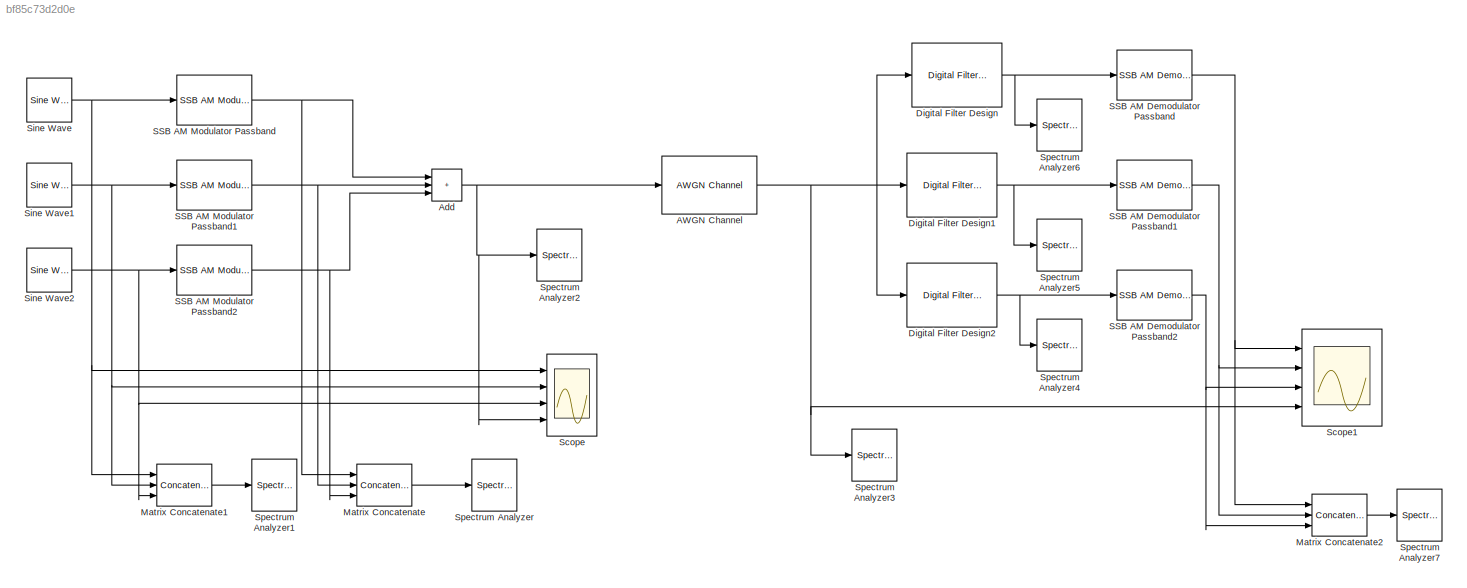
MODEL slx_bf85c73d2d0e
KIND model
CONFIG AbsTol = auto
CONFIG EnableMultiTasking = off
CONFIG FixedStep = auto
CONFIG MaxStep = auto
CONFIG MinStep = auto
CONFIG RelTol = 1e-3
CONFIG SampleTimeConstraint = Unconstrained
CONFIG Solver = VariableStepAuto
CONFIG SolverName = VariableStepAuto
CONFIG StartTime = 0.0
CONFIG StopTime = 2
BLOCK [Reference] AWGN Channel  REF=commchan3/AWGN
Channel
  Ports = [1, 1]
  SourceBlock = commchan3/AWGN\nChannel
  SourceProductBaseCode = CM
  SourceType = AWGN Channel
  UserDataPersistent = on
BLOCK [Sum] Add
  IconShape = rectangular
  Inputs = +++
  Ports = [3, 1]
BLOCK [Reference] Digital Filter Design  REF=dsparch4/Digital
Filter Design
  Ports = [1, 1]
  SourceBlock = dsparch4/Digital\nFilter Design
  SourceProductBaseCode = DS
  SourceType = Digital Filter Design
  UserDataPersistent = on
BLOCK [Reference] Digital Filter Design1  REF=dsparch4/Digital
Filter Design
  Ports = [1, 1]
  SourceBlock = dsparch4/Digital\nFilter Design
  SourceProductBaseCode = DS
  SourceType = Digital Filter Design
  UserDataPersistent = on
BLOCK [Reference] Digital Filter Design2  REF=dsparch4/Digital
Filter Design
  Ports = [1, 1]
  SourceBlock = dsparch4/Digital\nFilter Design
  SourceProductBaseCode = DS
  SourceType = Digital Filter Design
  UserDataPersistent = on
BLOCK [Concatenate] Matrix Concatenate
  ConcatenateDimension = 2
  NumInputs = 3
  Ports = [3, 1]
BLOCK [Concatenate] Matrix Concatenate1
  ConcatenateDimension = 2
  NumInputs = 3
  Ports = [3, 1]
BLOCK [Concatenate] Matrix Concatenate2
  ConcatenateDimension = 2
  NumInputs = 3
  Ports = [3, 1]
BLOCK [Reference] SSB AM Demodulator Passband  REF=commanapbnd3/SSB AM
Demodulator
Passband
  Ports = [1, 1]
  SourceBlock = commanapbnd3/SSB AM\nDemodulator\nPassband
  SourceProductBaseCode = CM
  SourceType = SSB AM Demodulator Passband
BLOCK [Reference] SSB AM Demodulator Passband1  REF=commanapbnd3/SSB AM
Demodulator
Passband
  Ports = [1, 1]
  SourceBlock = commanapbnd3/SSB AM\nDemodulator\nPassband
  SourceProductBaseCode = CM
  SourceType = SSB AM Demodulator Passband
BLOCK [Reference] SSB AM Demodulator Passband2  REF=commanapbnd3/SSB AM
Demodulator
Passband
  Ports = [1, 1]
  SourceBlock = commanapbnd3/SSB AM\nDemodulator\nPassband
  SourceProductBaseCode = CM
  SourceType = SSB AM Demodulator Passband
BLOCK [Reference] SSB AM Modulator Passband  REF=commanapbnd3/SSB AM
Modulator
Passband
  Ports = [1, 1]
  SourceBlock = commanapbnd3/SSB AM\nModulator\nPassband
  SourceProductBaseCode = CM
  SourceType = SSB AM Modulator Passband
BLOCK [Reference] SSB AM Modulator Passband1  REF=commanapbnd3/SSB AM
Modulator
Passband
  Ports = [1, 1]
  SourceBlock = commanapbnd3/SSB AM\nModulator\nPassband
  SourceProductBaseCode = CM
  SourceType = SSB AM Modulator Passband
BLOCK [Reference] SSB AM Modulator Passband2  REF=commanapbnd3/SSB AM
Modulator
Passband
  Ports = [1, 1]
  SourceBlock = commanapbnd3/SSB AM\nModulator\nPassband
  SourceProductBaseCode = CM
  SourceType = SSB AM Modulator Passband
BLOCK [Scope] Scope
  Floating = off
  NumInputPorts = 4
  Ports = [4]
  ScopeSpecificationString = Simulink.scopes.TimeScopeBlockCfg('CurrentConfiguration', extmgr.ConfigurationSet(extmgr.Configuration('Core','General UI',true),extmgr.Configuration('Core','Source UI',true),extmgr.Configuration('Sources','WiredSimulink',true),extmgr.Configuration('Visuals','Time Domain',true,'SerializedDisplays',{struct('MinYLimReal','-6.25','MaxYLimReal','6.25','YLabelReal','','MinYLimMag','0.00000','MaxYLimMag...<+3405ch>
BLOCK [Scope] Scope1
  Floating = off
  NumInputPorts = 4
  Ports = [4]
  ScopeSpecificationString = Simulink.scopes.TimeScopeBlockCfg('CurrentConfiguration', extmgr.ConfigurationSet(extmgr.Configuration('Core','General UI',true),extmgr.Configuration('Core','Source UI',true),extmgr.Configuration('Sources','WiredSimulink',true,'DataLoggingVariableName','ScopeData1'),extmgr.Configuration('Visuals','Time Domain',true,'SerializedDisplays',{struct('MinYLimReal','-4.09608','MaxYLimReal','4.03274','YLab...<+3540ch>
BLOCK [Reference] Sine Wave  REF=dspsrcs4/Sine Wave
  Ports = [0, 1]
  SourceBlock = dspsrcs4/Sine Wave
  SourceProductBaseCode = DS
  SourceType = Sine Wave
BLOCK [Reference] Sine Wave1  REF=dspsrcs4/Sine Wave
  Ports = [0, 1]
  SourceBlock = dspsrcs4/Sine Wave
  SourceProductBaseCode = DS
  SourceType = Sine Wave
BLOCK [Reference] Sine Wave2  REF=dspsrcs4/Sine Wave
  Ports = [0, 1]
  SourceBlock = dspsrcs4/Sine Wave
  SourceProductBaseCode = DS
  SourceType = Sine Wave
BLOCK [SpectrumAnalyzer] Spectrum Analyzer
  Ports = [1]
  ScopeSpecificationString = spbscopes.SpectrumAnalyzerBlockCfg('CurrentConfiguration', extmgr.ConfigurationSet(extmgr.Configuration('Core','General UI',true),extmgr.Configuration('Core','Source UI',true),extmgr.Configuration('Sources','WiredSimulink',true),extmgr.Configuration('Visuals','Spectrum',true,'AxesProperties',struct('Color',{[0 0 0],[0 0 0]},'XColor',{[0.686274509803922 0.686274509803922 0.686274509803922],[0.68627...<+1947ch>
BLOCK [SpectrumAnalyzer] Spectrum Analyzer1
  Ports = [1]
  ScopeSpecificationString = spbscopes.SpectrumAnalyzerBlockCfg('CurrentConfiguration', extmgr.ConfigurationSet(extmgr.Configuration('Core','General UI',true),extmgr.Configuration('Core','Source UI',true),extmgr.Configuration('Sources','WiredSimulink',true),extmgr.Configuration('Sources','SimulinkEvent',false),extmgr.Configuration('Sources','Simulink',false),extmgr.Configuration('Sources','SPTool',false),extmgr.Configuration(...<+3631ch>
BLOCK [SpectrumAnalyzer] Spectrum Analyzer2
  Ports = [1]
  ScopeSpecificationString = spbscopes.SpectrumAnalyzerBlockCfg('CurrentConfiguration', extmgr.ConfigurationSet(extmgr.Configuration('Core','General UI',true),extmgr.Configuration('Core','Source UI',true),extmgr.Configuration('Sources','WiredSimulink',true),extmgr.Configuration('Visuals','Spectrum',true,'AxesProperties',struct('Color',{[0 0 0],[0 0 0]},'XColor',{[0.686274509803922 0.686274509803922 0.686274509803922],[0.68627...<+2515ch>
BLOCK [SpectrumAnalyzer] Spectrum Analyzer3
  Ports = [1]
  ScopeSpecificationString = spbscopes.SpectrumAnalyzerBlockCfg('CurrentConfiguration', extmgr.ConfigurationSet(extmgr.Configuration('Core','General UI',true),extmgr.Configuration('Core','Source UI',true),extmgr.Configuration('Sources','WiredSimulink',true),extmgr.Configuration('Visuals','Spectrum',true,'AxesProperties',struct('Color',{[0 0 0],[0 0 0]},'XColor',{[0.686274509803922 0.686274509803922 0.686274509803922],[0.68627...<+1797ch>
BLOCK [SpectrumAnalyzer] Spectrum Analyzer4
  Ports = [1]
  ScopeSpecificationString = spbscopes.SpectrumAnalyzerBlockCfg('CurrentConfiguration', extmgr.ConfigurationSet(extmgr.Configuration('Core','General UI',true),extmgr.Configuration('Core','Source UI',true),extmgr.Configuration('Sources','WiredSimulink',true),extmgr.Configuration('Visuals','Spectrum',true,'AxesProperties',struct('Color',{[0 0 0],[0 0 0]},'XColor',{[0.686274509803922 0.686274509803922 0.686274509803922],[0.68627...<+1797ch>
BLOCK [SpectrumAnalyzer] Spectrum Analyzer5
  Ports = [1]
  ScopeSpecificationString = spbscopes.SpectrumAnalyzerBlockCfg('CurrentConfiguration', extmgr.ConfigurationSet(extmgr.Configuration('Core','General UI',true),extmgr.Configuration('Core','Source UI',true),extmgr.Configuration('Sources','WiredSimulink',true),extmgr.Configuration('Visuals','Spectrum',true,'AxesProperties',struct('Color',{[0 0 0],[0 0 0]},'XColor',{[0.686274509803922 0.686274509803922 0.686274509803922],[0.68627...<+1799ch>
BLOCK [SpectrumAnalyzer] Spectrum Analyzer6
  Ports = [1]
  ScopeSpecificationString = spbscopes.SpectrumAnalyzerBlockCfg('CurrentConfiguration', extmgr.ConfigurationSet(extmgr.Configuration('Core','General UI',true),extmgr.Configuration('Core','Source UI',true),extmgr.Configuration('Sources','WiredSimulink',true),extmgr.Configuration('Visuals','Spectrum',true,'AxesProperties',struct('Color',{[0 0 0],[0 0 0]},'XColor',{[0.686274509803922 0.686274509803922 0.686274509803922],[0.68627...<+1795ch>
BLOCK [SpectrumAnalyzer] Spectrum Analyzer7
  Ports = [1]
  ScopeSpecificationString = spbscopes.SpectrumAnalyzerBlockCfg('CurrentConfiguration', extmgr.ConfigurationSet(extmgr.Configuration('Core','General UI',true),extmgr.Configuration('Core','Source UI',true),extmgr.Configuration('Sources','WiredSimulink',true),extmgr.Configuration('Visuals','Spectrum',true,'AxesProperties',struct('Color',{[0 0 0],[0 0 0]},'XColor',{[0.686274509803922 0.686274509803922 0.686274509803922],[0.68627...<+1934ch>
NET AWGN Channel:1 -> Digital Filter Design1:1, Digital Filter Design2:1, Digital Filter Design:1, Scope1:4, Spectrum Analyzer3:1
NET Add:1 -> AWGN Channel:1, Scope:4, Spectrum Analyzer2:1
NET Digital Filter Design1:1 -> SSB AM Demodulator Passband1:1, Spectrum Analyzer5:1
NET Digital Filter Design2:1 -> SSB AM Demodulator Passband2:1, Spectrum Analyzer4:1
NET Digital Filter Design:1 -> SSB AM Demodulator Passband:1, Spectrum Analyzer6:1
LINE Matrix Concatenate1:1 -> Spectrum Analyzer1:1
LINE Matrix Concatenate2:1 -> Spectrum Analyzer7:1
LINE Matrix Concatenate:1 -> Spectrum Analyzer:1
NET SSB AM Demodulator Passband1:1 -> Matrix Concatenate2:2, Scope1:2
NET SSB AM Demodulator Passband2:1 -> Matrix Concatenate2:3, Scope1:3
NET SSB AM Demodulator Passband:1 -> Matrix Concatenate2:1, Scope1:1
NET SSB AM Modulator Passband1:1 -> Add:2, Matrix Concatenate:2
NET SSB AM Modulator Passband2:1 -> Add:3, Matrix Concatenate:3
NET SSB AM Modulator Passband:1 -> Add:1, Matrix Concatenate:1
NET Sine Wave1:1 -> Matrix Concatenate1:2, SSB AM Modulator Passband1:1, Scope:2
NET Sine Wave2:1 -> Matrix Concatenate1:3, SSB AM Modulator Passband2:1, Scope:3
NET Sine Wave:1 -> Matrix Concatenate1:1, SSB AM Modulator Passband:1, Scope:1
note: NET lines group one-source signal fan-out (src -> all destinations, sorted); 1:1 wires keep LINE
